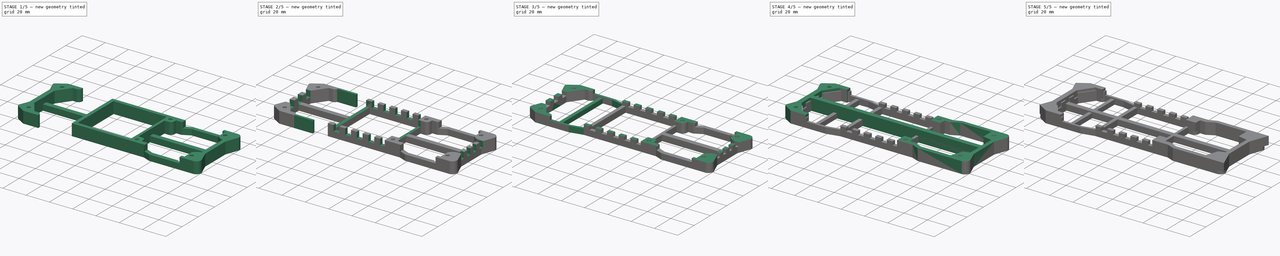
[diagram: build sequence overview — one tinted view per stage of 5, left to right]
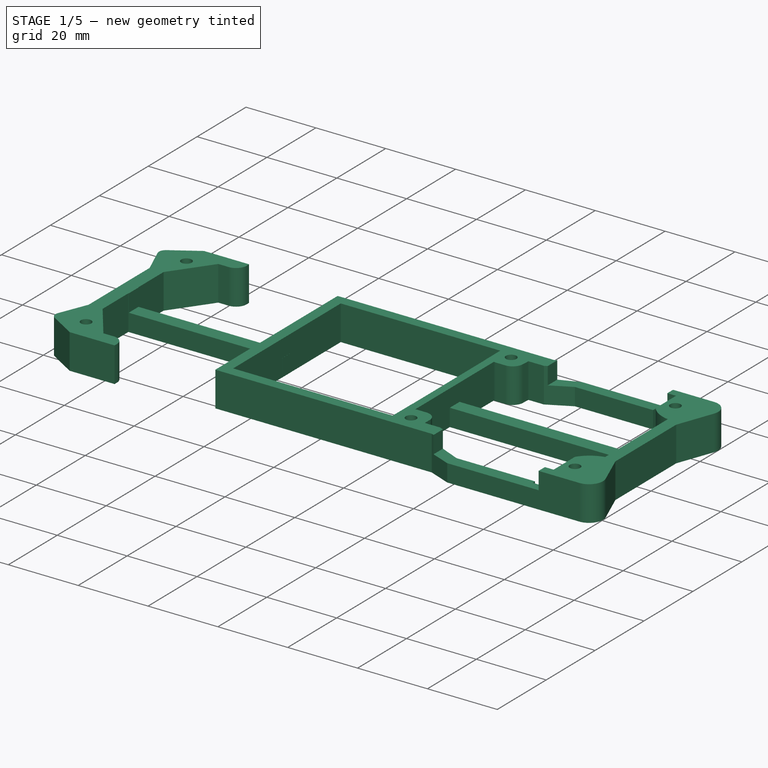
[diagram: stage 1 of 5 — iso view after this stage's code; geometry added in this stage tinted green]
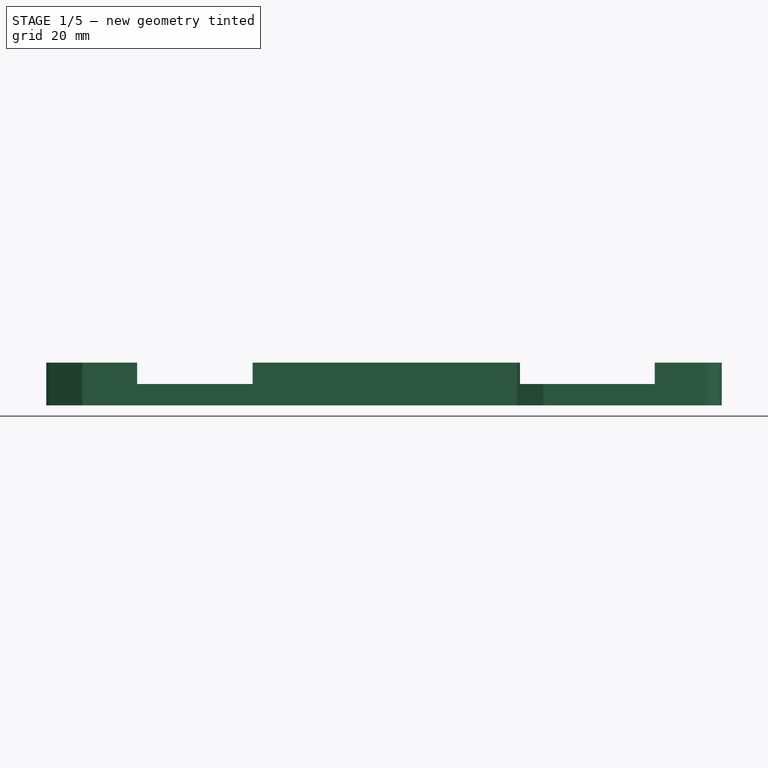
[diagram: stage 1 of 5 — front view after this stage's code; geometry added in this stage tinted green]
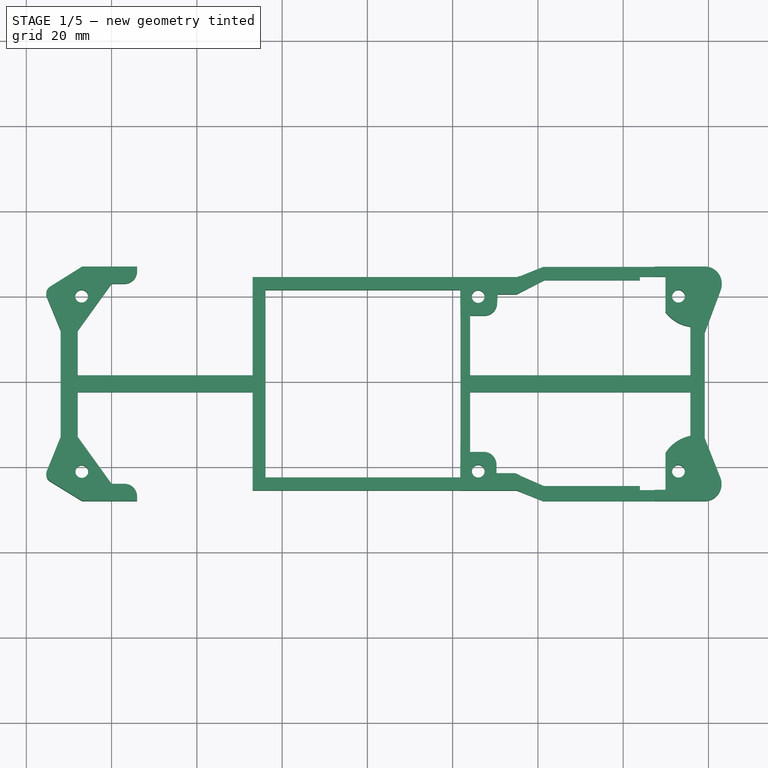
[diagram: stage 1 of 5 — top view after this stage's code; geometry added in this stage tinted green]
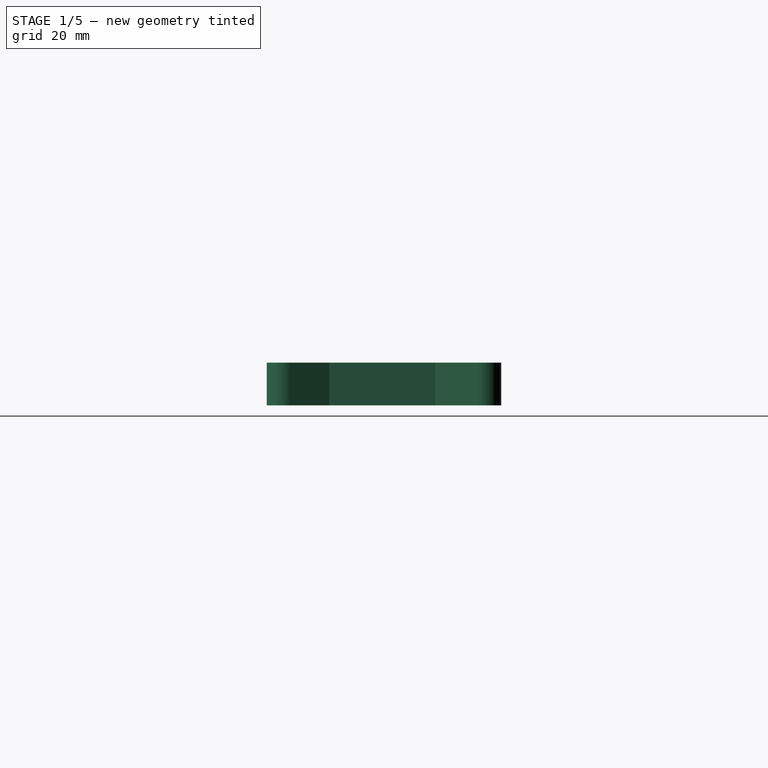
[diagram: stage 1 of 5 — right view after this stage's code; geometry added in this stage tinted green]
FCSTD DOCUMENT  (FreeCAD 0.16R6703 (Git))
Label: Spacer Botton v2
License: FreeArt
LicenseURL: http://artlibre.org/licence/lal
objects: Sketcher::SketchObject×20, PartDesign::Pocket×14, PartDesign::Pad×6, Part::Feature×5, PartDesign::Fillet×4, Part::Fuse×1
note: 70 computed .brp shape members not serialized (recipe doc carries the construction recipe); baked Part::Feature solids carry a one-line shape summary decoded from their .brp

FEATURE [Sketcher::SketchObject] Sketch006
  Placement = pos=(0,0,-10) rot=(1,0,0;3.14159rad)
  Support = -> Fillet003001001 [Face1]
  sketch-geometry (4):
    g0: LineSegment StartX=-80.4988 StartY=32.0496 StartZ=0 EndX=0 EndY=32.0496 EndZ=0
    g1: LineSegment StartX=0 StartY=32.0496 StartZ=0 EndX=0 EndY=-39.7529 EndZ=0
    g2: LineSegment StartX=0 StartY=-39.7529 StartZ=0 EndX=-80.4988 EndY=-39.7529 EndZ=0
    g3: LineSegment StartX=-80.4988 StartY=-39.7529 StartZ=0 EndX=-80.4988 EndY=32.0496 EndZ=0
  constraints (9):
    c: Coincident(g0,g1)
    c: Coincident(g1,g2)
    c: Coincident(g2,g3)
    c: Coincident(g3,g0)
    c: Horizontal(g0)
    c: Horizontal(g2)
    c: Vertical(g1)
    c: Vertical(g3)
    c: PointOnObject(g1,g-2)
FEATURE [PartDesign::Pocket] Pocket004
  Length = 5
  Placement = pos=(0,0,0) rot=(1,0,0;3.14159rad)
  Sketch = -> Sketch006
  Type = 0
FEATURE [Part::Feature] Pocket004001  label="Pocket005"
  Placement = pos=(0,0,0) rot=(1,0,0;3.14159rad)
  shape: bbox 83.13 x 54.98 x 10 mm, 54 faces (baked)
FEATURE [Part::Feature] Pocket003001  label="Pocket006"
  Placement = pos=(1,0,0) rot=(1,0,0;3.14159rad)
  shape: bbox 76.33 x 54.98 x 10 mm, 28 faces (baked)
FEATURE [Sketcher::SketchObject] Sketch007
  Placement = pos=(0,0,-10) rot=(1,0,0;3.14159rad)
  Support = -> Pocket004 [Face1]
  sketch-geometry (9):
    g0: LineSegment StartX=63.9125 StartY=25.4177 StartZ=0 EndX=69.9125 EndY=25.4177 EndZ=0
    g1: LineSegment StartX=69.9125 StartY=25.4177 StartZ=0 EndX=69.9125 EndY=16.6112 EndZ=0
    g2: LineSegment StartX=69.9125 StartY=16.6112 StartZ=0 EndX=63.9125 EndY=16.6112 EndZ=0
    g3: LineSegment StartX=63.9125 StartY=16.6112 StartZ=0 EndX=63.9125 EndY=25.4177 EndZ=0
    g4: LineSegment [constr] StartX=69.9125 StartY=34.0784 StartZ=0 EndX=69.9125 EndY=-31.1454 EndZ=0
    g5: LineSegment StartX=69.9125 StartY=-24.6367 StartZ=0 EndX=63.9125 EndY=-24.6367 EndZ=0
    g6: LineSegment StartX=63.9125 StartY=-24.6367 StartZ=0 EndX=63.9125 EndY=-13.9305 EndZ=0
    g7: LineSegment StartX=63.9125 StartY=-13.9305 StartZ=0 EndX=69.9125 EndY=-13.9305 EndZ=0
    g8: LineSegment StartX=69.9125 StartY=-13.9305 StartZ=0 EndX=69.9125 EndY=-24.6367 EndZ=0
  constraints (22):
    c: Coincident(g0,g1)
    c: Coincident(g1,g2)
    c: Coincident(g2,g3)
    c: Coincident(g3,g0)
    c: Horizontal(g0)
    c: Horizontal(g2)
    c: Vertical(g1)
    c: Vertical(g3)
    c: Equal(g1,g3)
    c: Vertical(g4)
    c: PointOnObject(g1,g4)
    c: Coincident(g5,g6)
    c: Coincident(g6,g7)
    c: Coincident(g7,g8)
    c: Coincident(g8,g5)
    c: Horizontal(g5)
    c: Horizontal(g7)
    c: Vertical(g6)
    c: Vertical(g8)
    c: PointOnObject(g5,g4)
    c: DistanceX(g7,g7) = 6
    c: DistanceX(g2,g2) = 6
FEATURE [PartDesign::Pocket] Pocket004002
  Length = 5
  Placement = pos=(0,0,0) rot=(1,0,0;3.14159rad)
  Sketch = -> Sketch007
  Type = 1
FEATURE [Part::Fuse] Fusion
  Base = -> Pocket003001
  Tool = -> Pocket004002
FEATURE [Sketcher::SketchObject] Sketch008
  Placement = pos=(0,0,-10) rot=(1,0,0;3.14159rad)
  Support = -> Fusion [Face24]
  sketch-geometry (12):
    g0: LineSegment [constr] StartX=21.9692 StartY=25.4523 StartZ=0 EndX=29.5286 EndY=25.4523 EndZ=0
    g1: LineSegment [constr] StartX=22.5282 StartY=-24.4657 StartZ=0 EndX=29.5286 EndY=-24.4657 EndZ=0
    g2: LineSegment [constr] StartX=-52.8049 StartY=0.4933 StartZ=0 EndX=47.8986 EndY=0.4933 EndZ=0
    g3: LineSegment [constr] StartX=-67.932 StartY=-1.98221 StartZ=0 EndX=-67.932 EndY=-11.8836 EndZ=0
    g4: LineSegment StartX=-26.9019 StartY=25.4933 StartZ=0 EndX=24.0981 EndY=25.4933 EndZ=0
    g5: LineSegment StartX=24.0981 StartY=25.4933 StartZ=0 EndX=24.0981 EndY=-24.5067 EndZ=0
    g6: LineSegment StartX=24.0981 StartY=-24.5067 StartZ=0 EndX=-26.9019 EndY=-24.5067 EndZ=0
    g7: LineSegment StartX=-26.9019 StartY=-24.5067 StartZ=0 EndX=-26.9019 EndY=25.4933 EndZ=0
    g8: LineSegment StartX=-23.9019 StartY=22.4933 StartZ=0 EndX=21.7981 EndY=22.4933 EndZ=0
    g9: LineSegment StartX=21.7981 StartY=22.4933 StartZ=0 EndX=21.7981 EndY=-21.5067 EndZ=0
    g10: LineSegment StartX=21.7981 StartY=-21.5067 StartZ=0 EndX=-23.9019 EndY=-21.5067 EndZ=0
    g11: LineSegment StartX=-23.9019 StartY=-21.5067 StartZ=0 EndX=-23.9019 EndY=22.4933 EndZ=0
  constraints (35):
    c: Horizontal(g0)
    c: Horizontal(g1)
    c: DistanceY(g-1,g0) = 25.4523
    c: DistanceY(g-1,g1) = -24.4657
    c: Symmetric(g1,g0,g2)
    c: Vertical(g3)
    c: DistanceX(g-2,g3) = -67.932
    c: DistanceX(g0,g0) = 7.55942
    c: DistanceX(g-2,g0) = 21.9692
    c: Coincident(g4,g5)
    c: Coincident(g5,g6)
    c: Coincident(g6,g7)
    c: Coincident(g7,g4)
    c: Horizontal(g4)
    c: Horizontal(g6)
    c: Vertical(g7)
    c: DistanceX(g-2,g1) = 22.5282
    c: Equal(g5,g7)
    c: DistanceY(g5,g5) = 50
    c: Symmetric(g4,g5,g2)
    c: Equal(g6,g4)
    c: DistanceX(g4,g4) = 51
    c: DistanceX(g-2,g5) = 24.0981
    c: Coincident(g8,g9)
    c: Coincident(g9,g10)
    c: Coincident(g10,g11)
    c: Coincident(g11,g8)
    c: Horizontal(g8)
    c: Horizontal(g10)
    c: Vertical(g9)
    c: Vertical(g11)
    c: Symmetric(g10,g8,g2)
    c: Distance(g10,g7) = 3
    c: Distance(g10,g6) = 3
    c: Distance(g9,g5) = 2.3
FEATURE [PartDesign::Pad] Pad003
  Length = 10
  Length2 = 100
  Reversed = true
  Sketch = -> Sketch008
  Type = 0
FEATURE [Sketcher::SketchObject] Sketch009
  Support = -> Pad003 [Face97]
  sketch-geometry (4):
    g0: LineSegment StartX=21.8458 StartY=15.3458 StartZ=0 EndX=-23.8879 EndY=15.3458 EndZ=0
    g1: LineSegment StartX=-23.8879 StartY=15.3458 StartZ=0 EndX=-23.8879 EndY=-14.4613 EndZ=0
    g2: LineSegment StartX=-23.8879 StartY=-14.4613 StartZ=0 EndX=21.8458 EndY=-14.4613 EndZ=0
    g3: LineSegment StartX=21.8458 StartY=-14.4613 StartZ=0 EndX=21.8458 EndY=15.3458 EndZ=0
  constraints (8):
    c: Coincident(g0,g1)
    c: Coincident(g1,g2)
    c: Coincident(g2,g3)
    c: Coincident(g3,g0)
    c: Horizontal(g0)
    c: Horizontal(g2)
    c: Vertical(g1)
    c: Vertical(g3)
FEATURE [PartDesign::Pocket] Pocket004003
  Length = 5
  Sketch = -> Sketch009
  Type = 1
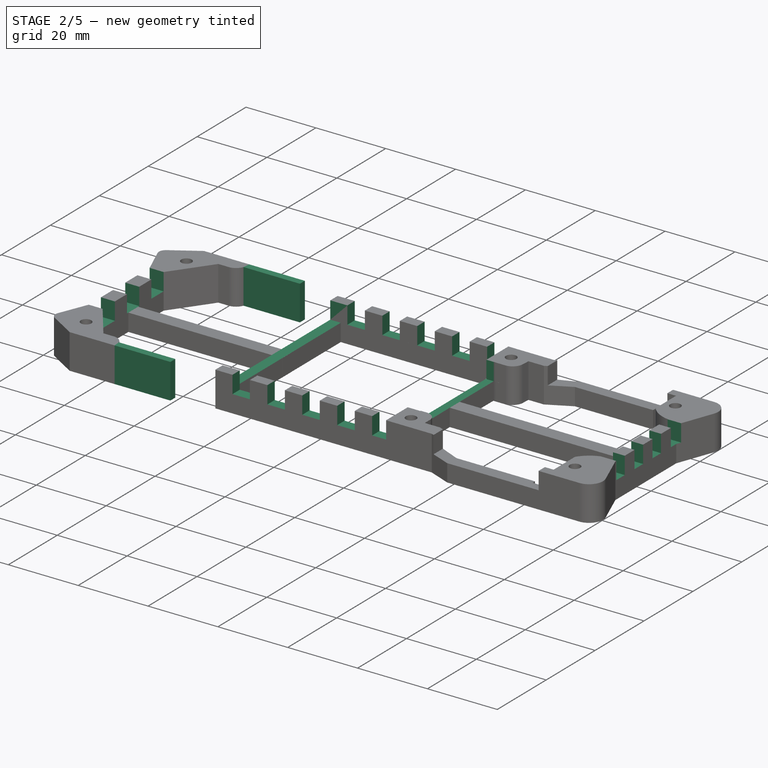
[diagram: stage 2 of 5 — iso view after this stage's code; geometry added in this stage tinted green]
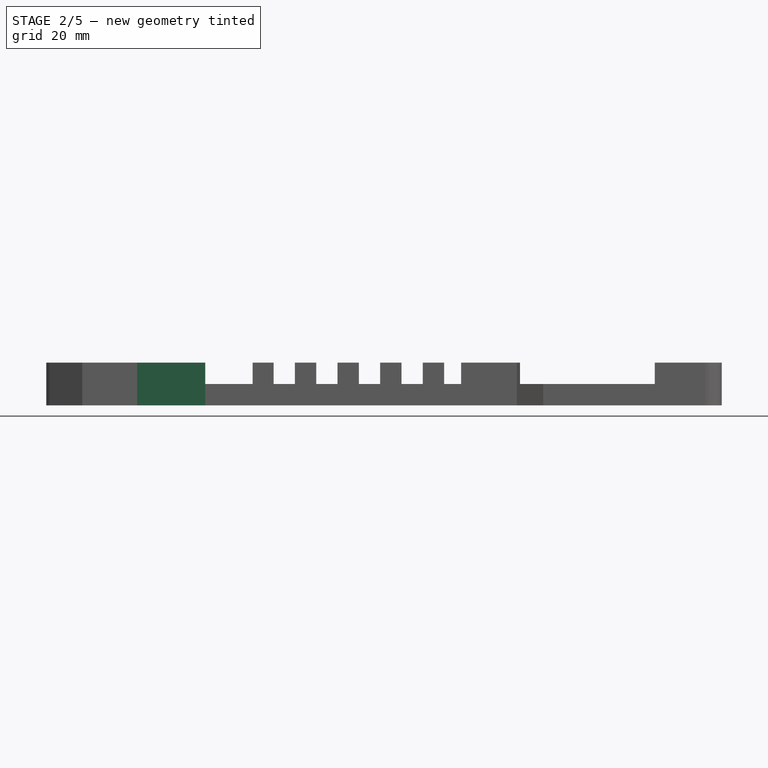
[diagram: stage 2 of 5 — front view after this stage's code; geometry added in this stage tinted green]
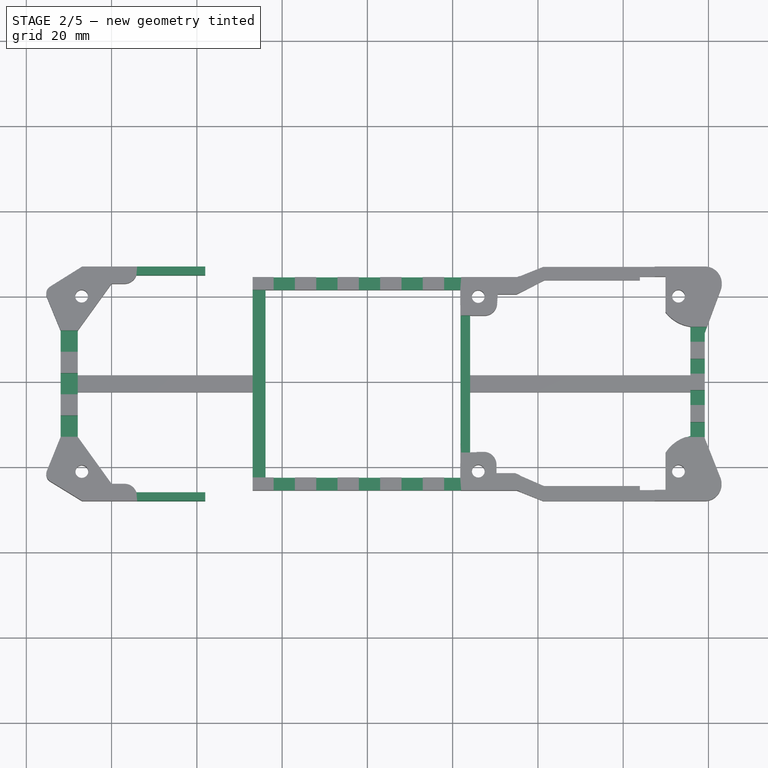
[diagram: stage 2 of 5 — top view after this stage's code; geometry added in this stage tinted green]
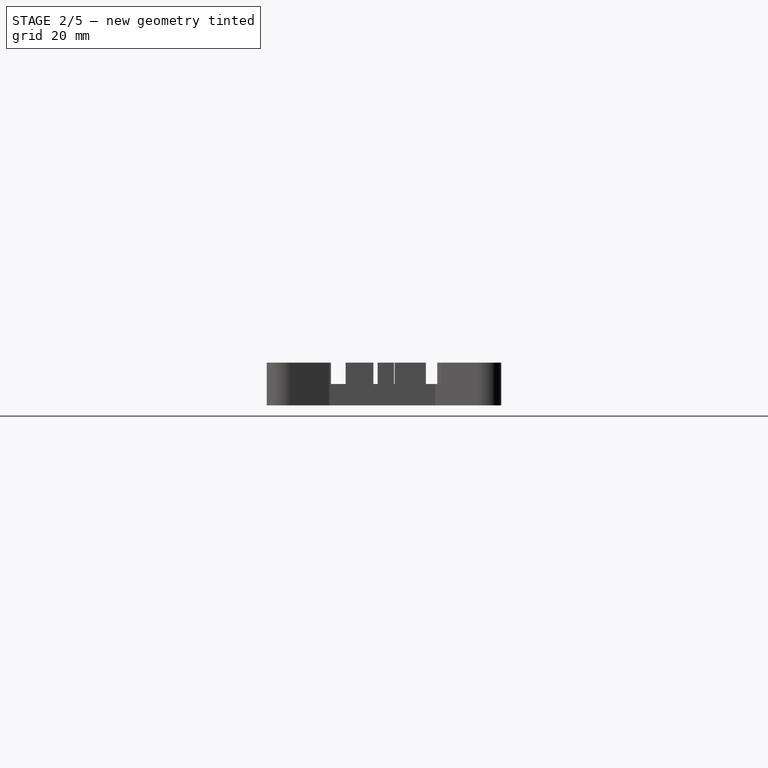
[diagram: stage 2 of 5 — right view after this stage's code; geometry added in this stage tinted green]
FEATURE [Sketcher::SketchObject] Sketch010
  Support = -> Pocket004003 [Face10]
  sketch-geometry (8):
    g0: LineSegment StartX=-33.8543 StartY=21.508 StartZ=0 EndX=18.9825 EndY=21.508 EndZ=0
    g1: LineSegment StartX=18.9825 StartY=21.508 StartZ=0 EndX=18.9825 EndY=15.5043 EndZ=0
    g2: LineSegment StartX=18.9825 StartY=15.5043 StartZ=0 EndX=25.6196 EndY=15.5043 EndZ=0
    g3: LineSegment StartX=25.6196 StartY=15.5043 StartZ=0 EndX=25.6196 EndY=-16.6754 EndZ=0
    g4: LineSegment StartX=25.6196 StartY=-16.6754 StartZ=0 EndX=19.7282 EndY=-16.6754 EndZ=0
    g5: LineSegment StartX=19.7282 StartY=-16.6754 StartZ=0 EndX=19.7282 EndY=-22.4922 EndZ=0
    g6: LineSegment StartX=19.7282 StartY=-22.4922 StartZ=0 EndX=-33.8543 EndY=-22.4922 EndZ=0
    g7: LineSegment StartX=-33.8543 StartY=-22.4922 StartZ=0 EndX=-33.8543 EndY=21.508 EndZ=0
  constraints (16):
    c: Horizontal(g0)
    c: Coincident(g0,g1)
    c: Vertical(g1)
    c: Coincident(g1,g2)
    c: Horizontal(g2)
    c: Coincident(g2,g3)
    c: Vertical(g3)
    c: Coincident(g3,g4)
    c: Coincident(g4,g5)
    c: Vertical(g5)
    c: Coincident(g5,g6)
    c: Horizontal(g6)
    c: Coincident(g6,g7)
    c: Coincident(g7,g0)
    c: Vertical(g7)
    c: Horizontal(g4)
FEATURE [PartDesign::Pocket] Pocket004004
  Length = 5
  Sketch = -> Sketch010
  Type = 0
FEATURE [Sketcher::SketchObject] Sketch011
  Placement = pos=(0,0,-10) rot=(1,0,0;3.14159rad)
  Support = -> Pocket004004 [Face3]
  sketch-geometry (9):
    g0: LineSegment [constr] StartX=-54.0159 StartY=38.359 StartZ=0 EndX=-54.0159 EndY=-33.5097 EndZ=0
    g1: LineSegment StartX=-56.5677 StartY=27.9998 StartZ=0 EndX=-38.0159 EndY=27.9998 EndZ=0
    g2: LineSegment StartX=-38.0159 StartY=27.9998 StartZ=0 EndX=-38.0159 EndY=25.9998 EndZ=0
    g3: LineSegment StartX=-38.0159 StartY=25.9998 StartZ=0 EndX=-56.5677 EndY=25.9998 EndZ=0
    g4: LineSegment StartX=-56.5677 StartY=25.9998 StartZ=0 EndX=-56.5677 EndY=27.9998 EndZ=0
    g5: LineSegment StartX=-58.4628 StartY=-26.9701 StartZ=0 EndX=-38.0159 EndY=-26.9701 EndZ=0
    g6: LineSegment StartX=-38.0159 StartY=-24.9701 StartZ=0 EndX=-58.4628 EndY=-24.9701 EndZ=0
    g7: LineSegment StartX=-58.4628 StartY=-24.9701 StartZ=0 EndX=-58.4628 EndY=-26.9701 EndZ=0
    g8: LineSegment StartX=-38.0159 StartY=-26.9701 StartZ=0 EndX=-38.0159 EndY=-24.9701 EndZ=0
  constraints (20):
    c: Vertical(g0)
    c: DistanceX(g-2,g0) = -54.0159
    c: Coincident(g1,g2)
    c: Coincident(g2,g3)
    c: Coincident(g3,g4)
    c: Coincident(g4,g1)
    c: Horizontal(g1)
    c: Horizontal(g3)
    c: Vertical(g2)
    c: Vertical(g4)
    c: Equal(g4,g2)
    c: DistanceY(g4,g4) = 2
    c: Distance(g1,g0) = 16
    c: Coincident(g6,g7)
    c: Coincident(g7,g5)
    c: Horizontal(g5)
    c: Horizontal(g6)
    c: Vertical(g7)
    c: DistanceY(g7,g7) = 2
    c: Distance(g5,g0) = 16
FEATURE [PartDesign::Pad] Pad004
  Length = 10
  Length2 = 100
  Reversed = true
  Sketch = -> Sketch011
  Type = 0
FEATURE [Sketcher::SketchObject] Sketch012
  Support = -> Pad004 [Face120]
  sketch-geometry (12):
    g0: LineSegment StartX=-76.8566 StartY=11.9695 StartZ=0 EndX=-62.2825 EndY=11.9695 EndZ=0
    g1: LineSegment StartX=-62.2825 StartY=11.9695 StartZ=0 EndX=-62.2825 EndY=6.96953 EndZ=0
    g2: LineSegment StartX=-62.2825 StartY=6.96953 StartZ=0 EndX=-76.8566 EndY=6.96953 EndZ=0
    g3: LineSegment StartX=-76.8566 StartY=6.96953 StartZ=0 EndX=-76.8566 EndY=11.9695 EndZ=0
    g4: LineSegment StartX=-76.8932 StartY=1.98806 StartZ=0 EndX=-62.3192 EndY=1.98806 EndZ=0
    g5: LineSegment StartX=-62.3192 StartY=1.98806 StartZ=0 EndX=-62.3192 EndY=-3.01194 EndZ=0
    g6: LineSegment StartX=-62.3192 StartY=-3.01194 StartZ=0 EndX=-76.8932 EndY=-3.01194 EndZ=0
    g7: LineSegment StartX=-76.8932 StartY=-3.01194 StartZ=0 EndX=-76.8932 EndY=1.98806 EndZ=0
    g8: LineSegment StartX=-76.9141 StartY=-7.96626 StartZ=0 EndX=-62.34 EndY=-7.96626 EndZ=0
    g9: LineSegment StartX=-62.34 StartY=-7.96626 StartZ=0 EndX=-62.34 EndY=-12.9663 EndZ=0
    g10: LineSegment StartX=-62.34 StartY=-12.9663 StartZ=0 EndX=-76.9141 EndY=-12.9663 EndZ=0
    g11: LineSegment StartX=-76.9141 StartY=-12.9663 StartZ=0 EndX=-76.9141 EndY=-7.96626 EndZ=0
  constraints (29):
    c: Coincident(g0,g1)
    c: Coincident(g1,g2)
    c: Coincident(g2,g3)
    c: Coincident(g3,g0)
    c: Horizontal(g0)
    c: Horizontal(g2)
    c: Vertical(g1)
    c: Vertical(g3)
    c: Equal(g3,g1)
    c: DistanceY(g3,g3) = 5
    c: Coincident(g4,g5)
    c: Coincident(g5,g6)
    c: Coincident(g6,g7)
    c: Coincident(g7,g4)
    c: Horizontal(g4)
    c: Horizontal(g6)
    c: Vertical(g5)
    c: Vertical(g7)
    c: Equal(g7,g5)
    c: Equal(g3,g7) = 5
    c: Coincident(g8,g9)
    c: Coincident(g9,g10)
    c: Coincident(g10,g11)
    c: Coincident(g11,g8)
    c: Horizontal(g8)
    c: Horizontal(g10)
    c: Vertical(g9)
    c: Vertical(g11)
    c: Equal(g11,g9)
FEATURE [PartDesign::Pocket] Pocket004005
  Length = 5
  Sketch = -> Sketch012
  Type = 0
FEATURE [Sketcher::SketchObject] Sketch013
  Support = -> Pocket004005 [Face111]
  sketch-geometry (16):
    g0: LineSegment StartX=68.3481 StartY=12.8243 StartZ=0 EndX=88.7073 EndY=12.8243 EndZ=0
    g1: LineSegment StartX=88.7073 StartY=12.8243 StartZ=0 EndX=88.7073 EndY=9.32435 EndZ=0
    g2: LineSegment StartX=88.7073 StartY=9.32435 StartZ=0 EndX=68.3481 EndY=9.32435 EndZ=0
    g3: LineSegment StartX=68.3481 StartY=9.32435 StartZ=0 EndX=68.3481 EndY=12.8243 EndZ=0
    g4: LineSegment StartX=68.3964 StartY=5.32435 StartZ=0 EndX=88.7556 EndY=5.32435 EndZ=0
    g5: LineSegment StartX=88.7556 StartY=5.32435 StartZ=0 EndX=88.7556 EndY=1.82435 EndZ=0
    g6: LineSegment StartX=88.7556 StartY=1.82435 StartZ=0 EndX=68.3964 EndY=1.82435 EndZ=0
    g7: LineSegment StartX=68.3964 StartY=1.82435 StartZ=0 EndX=68.3964 EndY=5.32435 EndZ=0
    g8: LineSegment StartX=68.3266 StartY=-2.0166 StartZ=0 EndX=88.6857 EndY=-2.0166 EndZ=0
    g9: LineSegment StartX=88.6857 StartY=-2.0166 StartZ=0 EndX=88.6857 EndY=-5.5166 EndZ=0
    g10: LineSegment StartX=88.6857 StartY=-5.5166 StartZ=0 EndX=68.3266 EndY=-5.5166 EndZ=0
    g11: LineSegment StartX=68.3266 StartY=-5.5166 StartZ=0 EndX=68.3266 EndY=-2.0166 EndZ=0
    g12: LineSegment StartX=68.2528 StartY=-9.5166 StartZ=0 EndX=88.6119 EndY=-9.5166 EndZ=0
    g13: LineSegment StartX=88.6119 StartY=-9.5166 StartZ=0 EndX=88.6119 EndY=-13.0166 EndZ=0
    g14: LineSegment StartX=88.6119 StartY=-13.0166 StartZ=0 EndX=68.2528 EndY=-13.0166 EndZ=0
    g15: LineSegment StartX=68.2528 StartY=-13.0166 StartZ=0 EndX=68.2528 EndY=-9.5166 EndZ=0
  constraints (42):
    c: Coincident(g0,g1)
    c: Coincident(g1,g2)
    c: Coincident(g2,g3)
    c: Coincident(g3,g0)
    c: Horizontal(g0)
    c: Horizontal(g2)
    c: Vertical(g1)
    c: Vertical(g3)
    c: Equal(g1,g3)
    c: DistanceY(g3,g3) = 3.5
    c: Coincident(g4,g5)
    c: Coincident(g5,g6)
    c: Coincident(g6,g7)
    c: Coincident(g7,g4)
    c: Horizontal(g4)
    c: Horizontal(g6)
    c: Vertical(g5)
    c: Vertical(g7)
    c: Equal(g5,g7)
    c: Equal(g3,g7) = 3.5
    c: Coincident(g8,g9)
    c: Coincident(g9,g10)
    c: Coincident(g10,g11)
    c: Coincident(g11,g8)
    c: Horizontal(g8)
    c: Horizontal(g10)
    c: Vertical(g9)
    c: Vertical(g11)
    c: Equal(g9,g11)
    c: Equal(g3,g11) = 3.5
    c: Coincident(g12,g13)
    c: Coincident(g13,g14)
    c: Coincident(g14,g15)
    c: Coincident(g15,g12)
    c: Horizontal(g12)
    c: Horizontal(g14)
    c: Vertical(g13)
    c: Vertical(g15)
    c: Equal(g13,g15)
    c: Equal(g11,g15) = 3.5
    c: Distance(g4,g2) = 4
    c: Distance(g12,g10) = 4
FEATURE [PartDesign::Pocket] Pocket004006
  Length = 5
  Sketch = -> Sketch013
  Type = 0
FEATURE [Sketcher::SketchObject] Sketch014
  Support = -> Pocket004006 [Face131]
  sketch-geometry (20):
    g0: LineSegment StartX=-22 StartY=29.4108 StartZ=0 EndX=-17 EndY=29.4108 EndZ=0
    g1: LineSegment StartX=-17 StartY=29.4108 StartZ=0 EndX=-17 EndY=-28.6531 EndZ=0
    g2: LineSegment StartX=-17 StartY=-28.6531 StartZ=0 EndX=-22 EndY=-28.6531 EndZ=0
    g3: LineSegment StartX=-22 StartY=-28.6531 StartZ=0 EndX=-22 EndY=29.4108 EndZ=0
    g4: LineSegment StartX=-12 StartY=29.5441 StartZ=0 EndX=-7 EndY=29.5441 EndZ=0
    g5: LineSegment StartX=-7 StartY=29.5441 StartZ=0 EndX=-7 EndY=-28.3863 EndZ=0
    g6: LineSegment StartX=-7 StartY=-28.3863 StartZ=0 EndX=-12 EndY=-28.3863 EndZ=0
    g7: LineSegment StartX=-12 StartY=-28.3863 StartZ=0 EndX=-12 EndY=29.5441 EndZ=0
    g8: LineSegment StartX=-2 StartY=29.2773 StartZ=0 EndX=3 EndY=29.2773 EndZ=0
    g9: LineSegment StartX=3 StartY=29.2773 StartZ=0 EndX=3 EndY=-28.6531 EndZ=0
    g10: LineSegment StartX=3 StartY=-28.6531 StartZ=0 EndX=-2 EndY=-28.6531 EndZ=0
    g11: LineSegment StartX=-2 StartY=-28.6531 StartZ=0 EndX=-2 EndY=29.2773 EndZ=0
    g12: LineSegment StartX=8 StartY=29.5441 StartZ=0 EndX=13 EndY=29.5441 EndZ=0
    g13: LineSegment StartX=13 StartY=29.5441 StartZ=0 EndX=13 EndY=-28.3863 EndZ=0
    g14: LineSegment StartX=13 StartY=-28.3863 StartZ=0 EndX=8 EndY=-28.3863 EndZ=0
    g15: LineSegment StartX=8 StartY=-28.3863 StartZ=0 EndX=8 EndY=29.5441 EndZ=0
    g16: LineSegment StartX=18 StartY=29.5441 StartZ=0 EndX=22 EndY=29.5441 EndZ=0
    g17: LineSegment StartX=22 StartY=29.5441 StartZ=0 EndX=22 EndY=-28.3863 EndZ=0
    g18: LineSegment StartX=22 StartY=-28.3863 StartZ=0 EndX=18 EndY=-28.3863 EndZ=0
    g19: LineSegment StartX=18 StartY=-28.3863 StartZ=0 EndX=18 EndY=29.5441 EndZ=0
  constraints (55):
    c: Coincident(g0,g1)
    c: Coincident(g1,g2)
    c: Coincident(g2,g3)
    c: Coincident(g3,g0)
    c: Horizontal(g0)
    c: Horizontal(g2)
    c: Vertical(g1)
    c: Vertical(g3)
    c: Equal(g2,g0)
    c: DistanceX(g0,g0) = 5
    c: Coincident(g4,g5)
    c: Coincident(g5,g6)
    c: Coincident(g6,g7)
    c: Coincident(g7,g4)
    c: Horizontal(g4)
    c: Horizontal(g6)
    c: Vertical(g5)
    c: Vertical(g7)
    c: Equal(g6,g4)
    c: Equal(g0,g4) = 5
    c: DistanceX(g-2,g2) = -22
    c: Distance(g4,g1) = 5
    c: Coincident(g8,g9)
    c: Coincident(g9,g10)
    c: Coincident(g10,g11)
    c: Coincident(g11,g8)
    c: Horizontal(g8)
    c: Horizontal(g10)
    c: Vertical(g9)
    c: Vertical(g11)
    c: Equal(g10,g8)
    c: Equal(g0,g8) = 5
    c: Coincident(g12,g13)
    c: Coincident(g13,g14)
    c: Coincident(g14,g15)
    c: Coincident(g15,g12)
    c: Horizontal(g12)
    c: Horizontal(g14)
    c: Vertical(g13)
    c: Vertical(g15)
    c: Equal(g14,g12)
    c: Equal(g8,g12) = 5
    c: Distance(g12,g9) = 5
    c: Distance(g10,g5) = 5
    c: Coincident(g16,g17)
    c: Coincident(g17,g18)
    c: Coincident(g18,g19)
    c: Coincident(g19,g16)
    c: Horizontal(g16)
    c: Horizontal(g18)
    c: Vertical(g17)
    c: Vertical(g19)
    c: Equal(g18,g16)
    c: Distance(g18,g13) = 5
    c: DistanceX(g18,g18) = 4
FEATURE [PartDesign::Pocket] Pocket004007
  Length = 5
  Sketch = -> Sketch014
  Type = 0
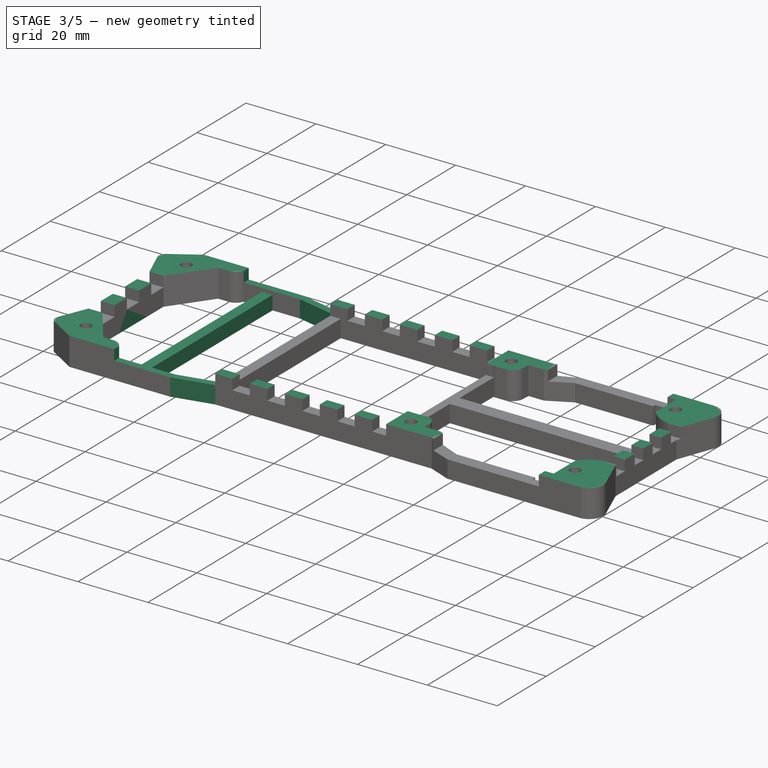
[diagram: stage 3 of 5 — iso view after this stage's code; geometry added in this stage tinted green]
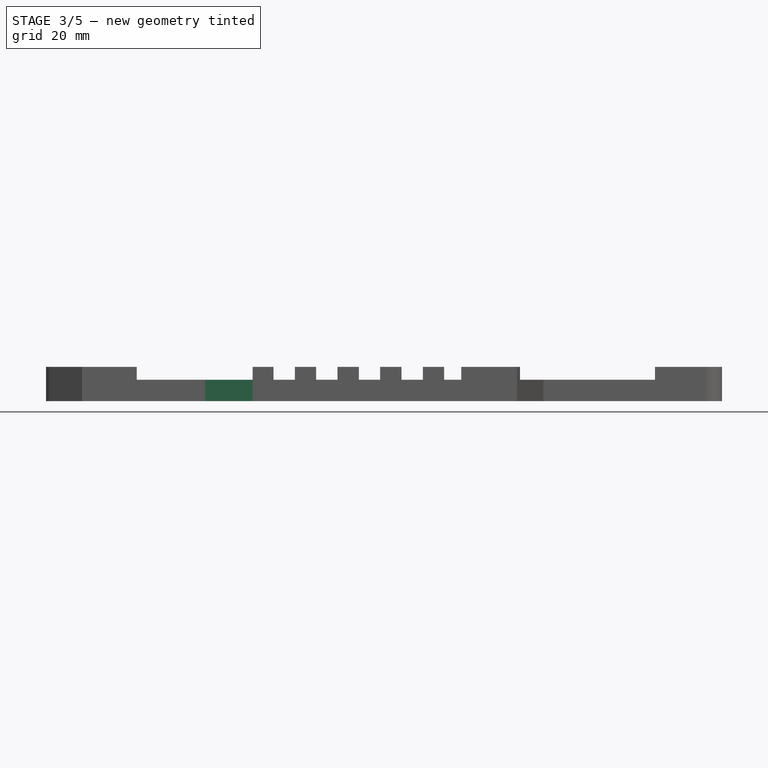
[diagram: stage 3 of 5 — front view after this stage's code; geometry added in this stage tinted green]
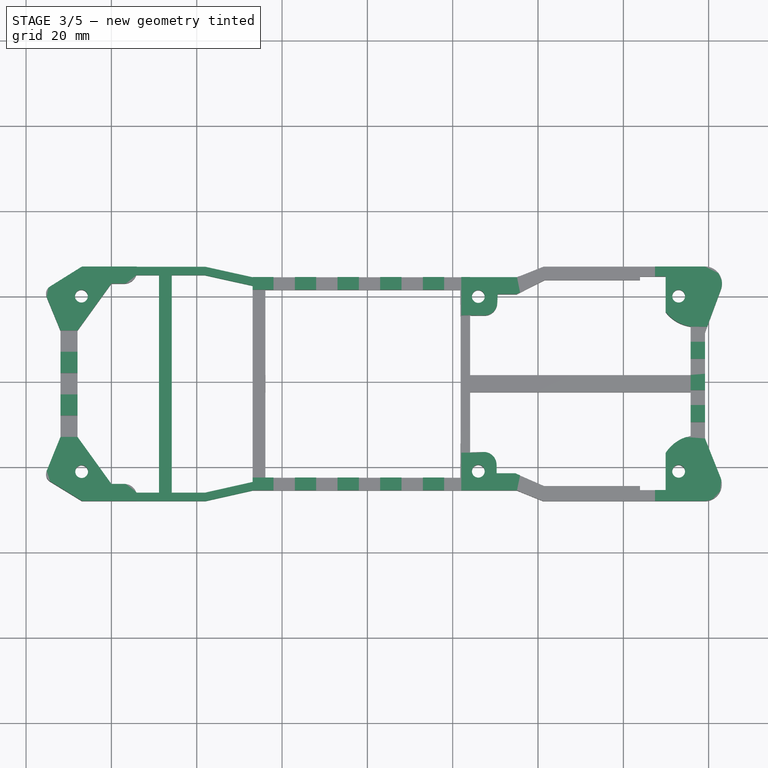
[diagram: stage 3 of 5 — top view after this stage's code; geometry added in this stage tinted green]
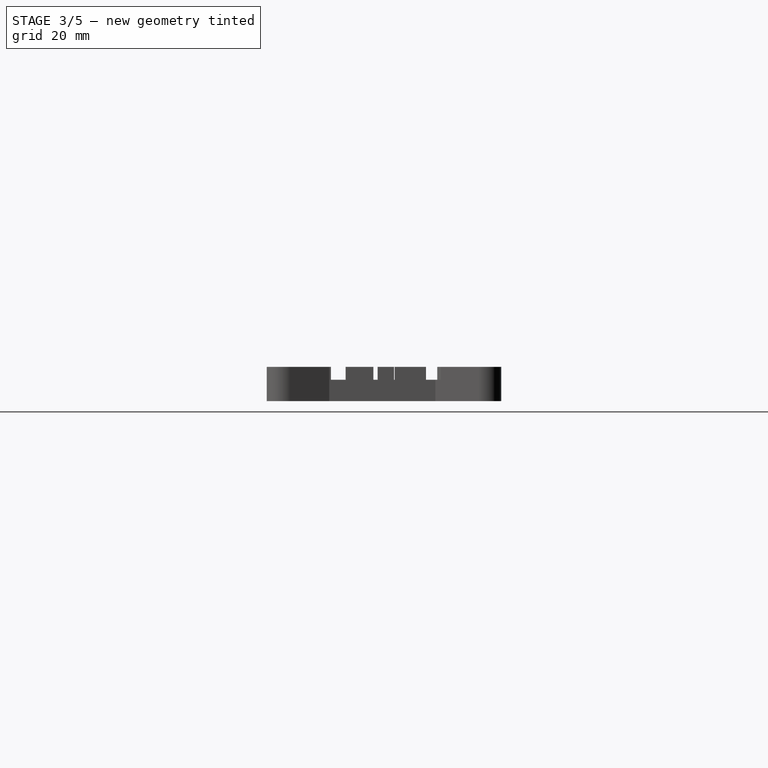
[diagram: stage 3 of 5 — right view after this stage's code; geometry added in this stage tinted green]
FEATURE [Sketcher::SketchObject] Sketch015
  Support = -> Pocket004007 [Face167]
  sketch-geometry (4):
    g0: LineSegment StartX=-54.0649 StartY=28.541 StartZ=0 EndX=-37.9659 EndY=28.541 EndZ=0
    g1: LineSegment StartX=-37.9659 StartY=28.541 StartZ=0 EndX=-37.9659 EndY=-30.0461 EndZ=0
    g2: LineSegment StartX=-37.9659 StartY=-30.0461 StartZ=0 EndX=-54.0649 EndY=-30.0461 EndZ=0
    g3: LineSegment StartX=-54.0649 StartY=-30.0461 StartZ=0 EndX=-54.0649 EndY=28.541 EndZ=0
  constraints (8):
    c: Coincident(g0,g1)
    c: Coincident(g1,g2)
    c: Coincident(g2,g3)
    c: Coincident(g3,g0)
    c: Horizontal(g0)
    c: Horizontal(g2)
    c: Vertical(g1)
    c: Vertical(g3)
FEATURE [PartDesign::Pocket] Pocket004008
  Length = 5
  Sketch = -> Sketch015
  Type = 0
FEATURE [Sketcher::SketchObject] Sketch016
  Support = -> Pocket004008 [Face169]
  sketch-geometry (4):
    g0: LineSegment StartX=-77.9644 StartY=37.1714 StartZ=0 EndX=87.8882 EndY=37.1714 EndZ=0
    g1: LineSegment StartX=87.8882 StartY=37.1714 StartZ=0 EndX=87.8882 EndY=-33.537 EndZ=0
    g2: LineSegment StartX=87.8882 StartY=-33.537 StartZ=0 EndX=-77.9644 EndY=-33.537 EndZ=0
    g3: LineSegment StartX=-77.9644 StartY=-33.537 StartZ=0 EndX=-77.9644 EndY=37.1714 EndZ=0
  constraints (8):
    c: Coincident(g0,g1)
    c: Coincident(g1,g2)
    c: Coincident(g2,g3)
    c: Coincident(g3,g0)
    c: Horizontal(g0)
    c: Horizontal(g2)
    c: Vertical(g1)
    c: Vertical(g3)
FEATURE [PartDesign::Pocket] Pocket004009
  Length = 2
  Sketch = -> Sketch016
  Type = 0
FEATURE [Sketcher::SketchObject] Sketch017
  Placement = pos=(0,0,-10) rot=(1,0,0;3.14159rad)
  Support = -> Pocket004009 [Face4]
  sketch-geometry (8):
    g0: LineSegment StartX=-38.017 StartY=-26.9693 StartZ=0 EndX=-26.8951 EndY=-24.5 EndZ=0
    g1: LineSegment StartX=-26.8951 StartY=-24.5 StartZ=0 EndX=-26.8951 EndY=-22.5 EndZ=0
    g2: LineSegment StartX=-26.8951 StartY=-22.5 StartZ=0 EndX=-38.017 EndY=-24.9693 EndZ=0
    g3: LineSegment StartX=-38.017 StartY=-24.9693 StartZ=0 EndX=-38.017 EndY=-26.9693 EndZ=0
    g4: LineSegment StartX=-38.0185 StartY=27.9898 StartZ=0 EndX=-26.8883 EndY=25.4857 EndZ=0
    g5: LineSegment StartX=-26.8883 StartY=25.4857 StartZ=0 EndX=-26.8883 EndY=23.4857 EndZ=0
    g6: LineSegment StartX=-26.8883 StartY=23.4857 StartZ=0 EndX=-38.0185 EndY=25.9898 EndZ=0
    g7: LineSegment StartX=-38.0185 StartY=25.9898 StartZ=0 EndX=-38.0185 EndY=27.9898 EndZ=0
  constraints (16):
    c: Coincident(g0,g1)
    c: Vertical(g1)
    c: Coincident(g1,g2)
    c: Coincident(g2,g3)
    c: Coincident(g3,g0)
    c: Vertical(g3)
    c: Equal(g1,g3)
    c: DistanceY(g3,g3) = 2
    c: Coincident(g4,g5)
    c: Vertical(g5)
    c: Coincident(g5,g6)
    c: Coincident(g6,g7)
    c: Coincident(g7,g4)
    c: Vertical(g7)
    c: DistanceY(g5,g5) = 2
    c: DistanceY(g7,g7) = 2
FEATURE [PartDesign::Pad] Pad005
  Length = 5
  Length2 = 100
  Reversed = true
  Sketch = -> Sketch017
  Type = 0
FEATURE [Sketcher::SketchObject] Sketch018
  Placement = pos=(0,0,-10) rot=(1,0,0;3.14159rad)
  Support = -> Pad005 [Face191]
  sketch-geometry (4):
    g0: LineSegment StartX=-67.9443 StartY=6.19699 StartZ=0 EndX=-26.8842 EndY=6.19699 EndZ=0
    g1: LineSegment StartX=-26.8842 StartY=6.19699 StartZ=0 EndX=-26.8842 EndY=-5.15508 EndZ=0
    g2: LineSegment StartX=-26.8842 StartY=-5.15508 StartZ=0 EndX=-67.9443 EndY=-5.15508 EndZ=0
    g3: LineSegment StartX=-67.9443 StartY=-5.15508 StartZ=0 EndX=-67.9443 EndY=6.19699 EndZ=0
  constraints (8):
    c: Coincident(g0,g1)
    c: Coincident(g1,g2)
    c: Coincident(g2,g3)
    c: Coincident(g3,g0)
    c: Horizontal(g0)
    c: Horizontal(g2)
    c: Vertical(g1)
    c: Vertical(g3)
FEATURE [PartDesign::Pocket] Pocket004010
  Length = 5
  Sketch = -> Sketch018
  Type = 0
FEATURE [Sketcher::SketchObject] Sketch019
  Placement = pos=(0,0,-10) rot=(1,0,0;3.14159rad)
  Support = -> Pocket004010 [Face2]
  sketch-geometry (7):
    g0: LineSegment StartX=-48.8511 StartY=26.8052 StartZ=0 EndX=-45.8511 EndY=26.8052 EndZ=0
    g1: LineSegment StartX=-45.8511 StartY=26.8052 StartZ=0 EndX=-45.8511 EndY=-26.3736 EndZ=0
    g2: LineSegment StartX=-45.8511 StartY=-26.3736 StartZ=0 EndX=-48.8511 EndY=-26.3736 EndZ=0
    g3: LineSegment StartX=-48.8511 StartY=-26.3736 StartZ=0 EndX=-48.8511 EndY=26.8052 EndZ=0
    g4: LineSegment [constr] StartX=-26.7888 StartY=3.54632 StartZ=0 EndX=-26.7888 EndY=-3.70442 EndZ=0
    g5: LineSegment [constr] StartX=-47.3511 StartY=5.04341 StartZ=0 EndX=-47.3511 EndY=-4.25404 EndZ=0
    g6: LineSegment [constr] StartX=-67.9135 StartY=3.54632 StartZ=0 EndX=-67.9135 EndY=-3.55974 EndZ=0
  constraints (16):
    c: Coincident(g0,g1)
    c: Coincident(g1,g2)
    c: Coincident(g2,g3)
    c: Coincident(g3,g0)
    c: Horizontal(g0)
    c: Horizontal(g2)
    c: Vertical(g1)
    c: Vertical(g3)
    c: DistanceX(g2,g2) = 3
    c: Vertical(g4)
    c: Vertical(g5)
    c: Vertical(g6)
    c: DistanceX(g-2,g4) = -26.7888
    c: DistanceX(g-2,g6) = -67.9135
    c: Symmetric(g4,g6,g5)
    c: Symmetric(g1,g2,g5)
FEATURE [PartDesign::Pad] Pad006
  Length = 4
  Length2 = 100
  Reversed = true
  Sketch = -> Sketch019
  Type = 0
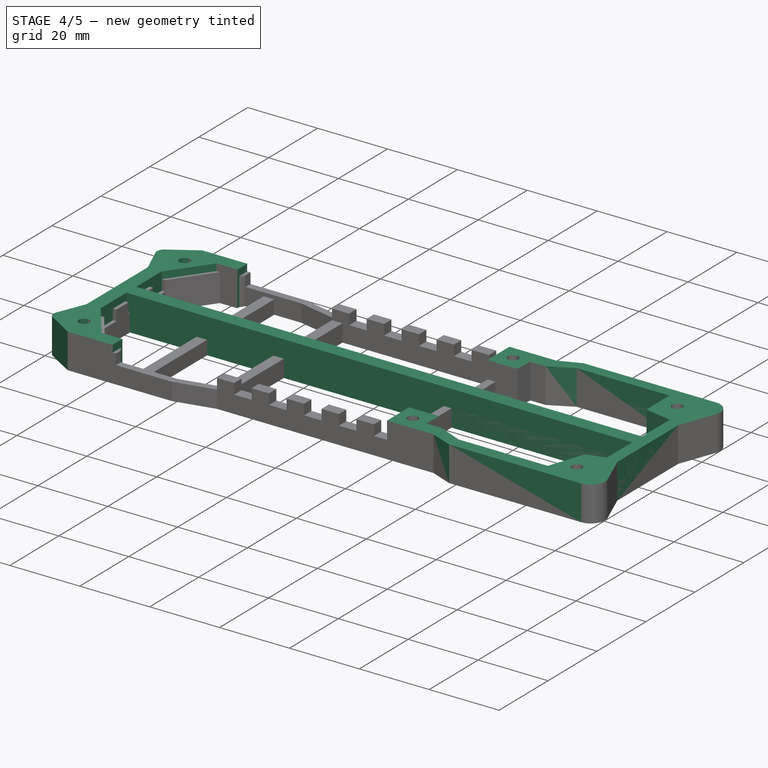
[diagram: stage 4 of 5 — iso view after this stage's code; geometry added in this stage tinted green]
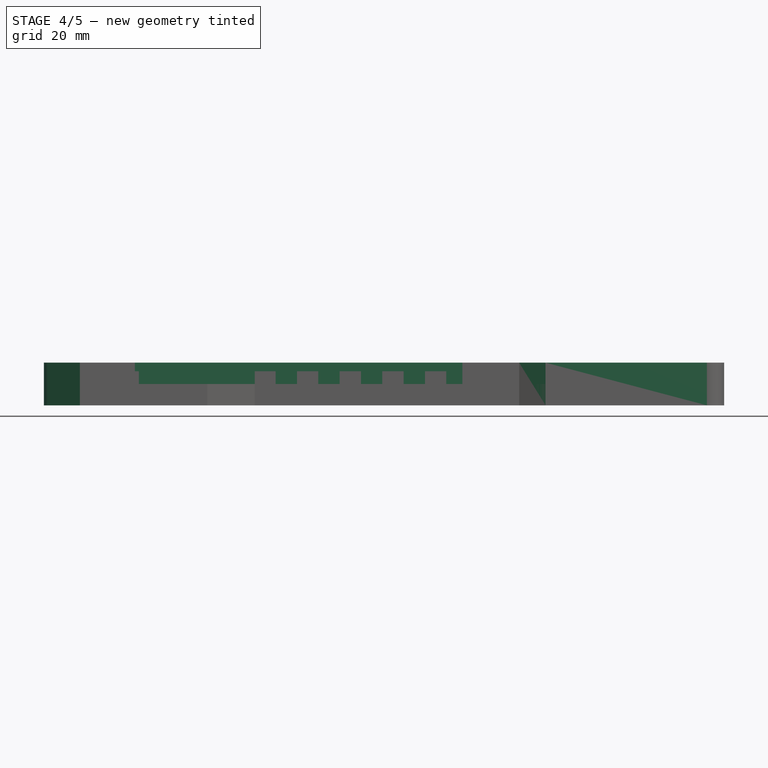
[diagram: stage 4 of 5 — front view after this stage's code; geometry added in this stage tinted green]
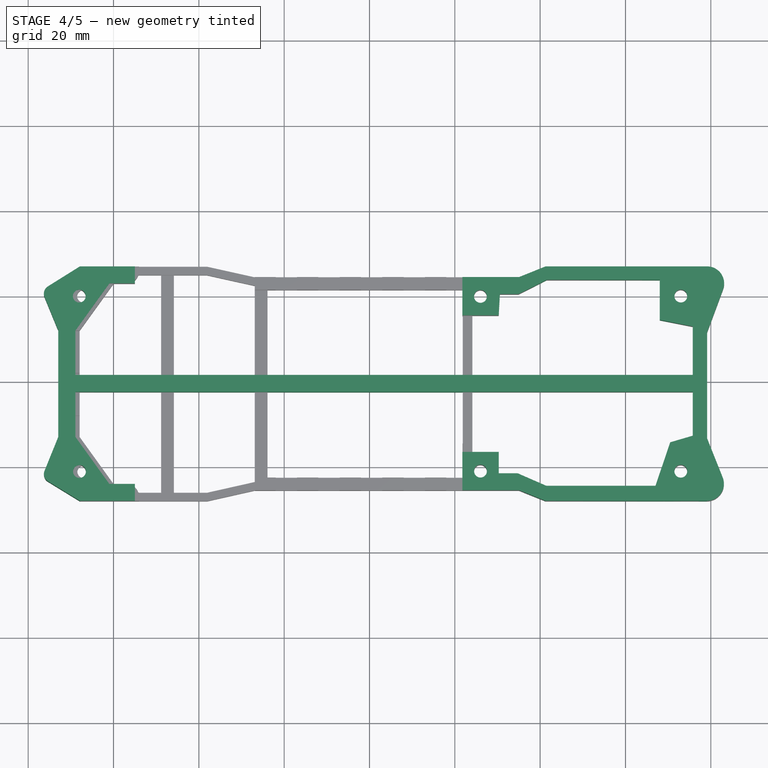
[diagram: stage 4 of 5 — top view after this stage's code; geometry added in this stage tinted green]
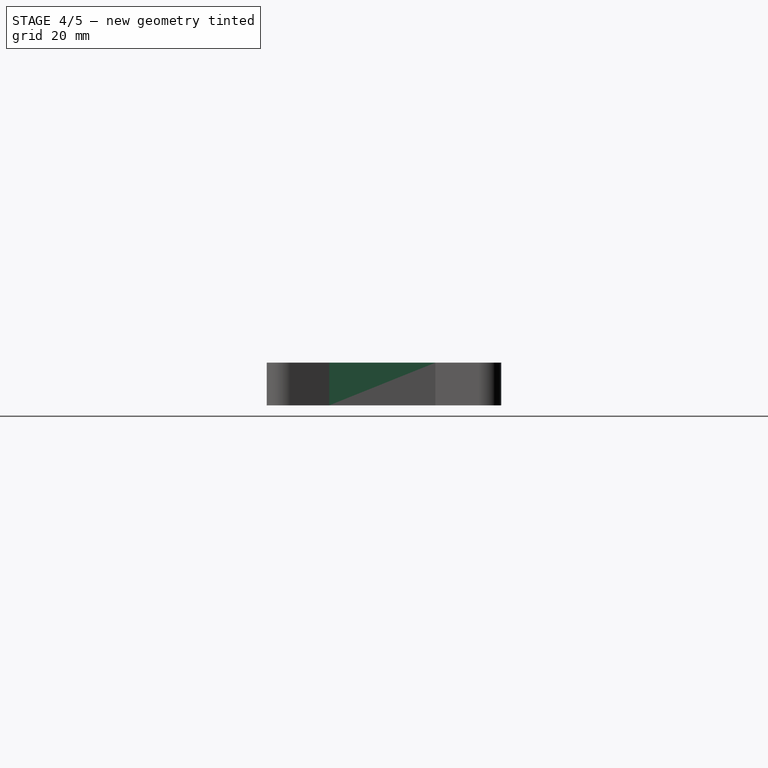
[diagram: stage 4 of 5 — right view after this stage's code; geometry added in this stage tinted green]
FEATURE [Part::Feature] Pad001
  Placement = pos=(0,0,0) rot=(1,0,0;3.14159rad)
  shape: bbox 161.8 x 54.98 x 10 mm, 44 faces, 2 solids (baked)
FEATURE [Sketcher::SketchObject] Sketch001
  Placement = pos=(0,0,-10) rot=(1,0,0;3.14159rad)
  Support = -> Pad001 [Face44]
  sketch-geometry (7):
    g0: LineSegment StartX=-70.3181 StartY=2.454 StartZ=0 EndX=78.1057 EndY=2.454 EndZ=0
    g1: LineSegment StartX=78.1057 StartY=2.454 StartZ=0 EndX=78.1057 EndY=-1.546 EndZ=0
    g2: LineSegment StartX=78.1057 StartY=-1.546 StartZ=0 EndX=-70.3181 EndY=-1.546 EndZ=0
    g3: LineSegment StartX=-70.3181 StartY=-1.546 StartZ=0 EndX=-70.3181 EndY=2.454 EndZ=0
    g4: LineSegment [constr] StartX=22.8225 StartY=25.3612 StartZ=0 EndX=27.8185 EndY=25.3612 EndZ=0
    g5: LineSegment [constr] StartX=22.8225 StartY=-24.4532 StartZ=0 EndX=29.6729 EndY=-24.4532 EndZ=0
    g6: LineSegment [constr] StartX=17.6497 StartY=0.454 StartZ=0 EndX=36.231 EndY=0.454 EndZ=0
  constraints (16):
    c: Coincident(g0,g1)
    c: Coincident(g1,g2)
    c: Coincident(g2,g3)
    c: Coincident(g3,g0)
    c: Horizontal(g0)
    c: Horizontal(g2)
    c: Vertical(g1)
    c: Vertical(g3)
    c: Horizontal(g4)
    c: Horizontal(g5)
    c: DistanceY(g-1,g4) = 25.3612
    c: DistanceY(g-1,g5) = -24.4532
    c: Horizontal(g6)
    c: Symmetric(g5,g4,g6)
    c: Symmetric(g1,g0,g6)
    c: DistanceY(g1,g1) = 4
FEATURE [PartDesign::Pad] Pad002
  Length = 10
  Length2 = 100
  Placement = pos=(0,0,0) rot=(1,0,0;3.14159rad)
  Reversed = true
  Sketch = -> Sketch001
  Type = 0
FEATURE [Sketcher::SketchObject] Sketch002
  Support = -> Pad002 [Face45]
  sketch-geometry (6):
    g0: Circle CenterX=26.003 CenterY=19.9332 CenterZ=0 NormalX=0 NormalY=0 NormalZ=1 Radius=1.5
    g1: Circle CenterX=26.0065 CenterY=-21.0226 CenterZ=0 NormalX=0 NormalY=0 NormalZ=1 Radius=1.5
    g2: Circle CenterX=-68.0255 CenterY=20.0177 CenterZ=0 NormalX=0 NormalY=0 NormalZ=1 Radius=1.5
    g3: Circle CenterX=-67.9755 CenterY=-21.111 CenterZ=0 NormalX=0 NormalY=0 NormalZ=1 Radius=1.5
    g4: Circle CenterX=72.9653 CenterY=20.0177 CenterZ=0 NormalX=0 NormalY=0 NormalZ=1 Radius=1.5
    g5: Circle CenterX=72.962 CenterY=-21.0458 CenterZ=0 NormalX=0 NormalY=0 NormalZ=1 Radius=1.5
  constraints (6):
    c: Radius(g0) = 1.5
    c: Radius(g1) = 1.5
    c: Radius(g2) = 1.5
    c: Radius(g3) = 1.5
    c: Radius(g4) = 1.5
    c: Radius(g5) = 1.5
FEATURE [PartDesign::Pocket] Pocket
  Length = 5
  Placement = pos=(0,0,0) rot=(1,0,0;3.14159rad)
  Sketch = -> Sketch002
  Type = 1
FEATURE [PartDesign::Fillet] Fillet
  Base = -> Pocket [Edge114,Edge120]
  Placement = pos=(0,0,0) rot=(1,0,0;3.14159rad)
  Radius = 4
FEATURE [PartDesign::Fillet] Fillet001
  Base = -> Fillet [Edge138,Edge126]
  Placement = pos=(0,0,0) rot=(1,0,0;3.14159rad)
  Radius = 2
FEATURE [Part::Feature] Fillet003001  label="Fillet004"
  Placement = pos=(0,0,0) rot=(1,0,0;3.14159rad)
  shape: bbox 159.5 x 54.98 x 10 mm, 76 faces (baked)
FEATURE [Part::Feature] Fillet003001001  label="Fillet005"
  Placement = pos=(0,0,0) rot=(1,0,0;3.14159rad)
  shape: bbox 159.5 x 54.98 x 10 mm, 76 faces (baked)
FEATURE [Sketcher::SketchObject] Sketch005
  Placement = pos=(0,0,-10) rot=(1,0,0;3.14159rad)
  Support = -> Fillet003001 [Face1]
  sketch-geometry (4):
    g0: LineSegment StartX=0 StartY=42.201 StartZ=0 EndX=99.0074 EndY=42.201 EndZ=0
    g1: LineSegment StartX=99.0074 StartY=42.201 StartZ=0 EndX=99.0074 EndY=-40.9909 EndZ=0
    g2: LineSegment StartX=99.0074 StartY=-40.9909 StartZ=0 EndX=0 EndY=-40.9909 EndZ=0
    g3: LineSegment StartX=0 StartY=-40.9909 StartZ=0 EndX=0 EndY=42.201 EndZ=0
  constraints (9):
    c: Coincident(g0,g1)
    c: Coincident(g1,g2)
    c: Coincident(g2,g3)
    c: Coincident(g3,g0)
    c: Horizontal(g0)
    c: Horizontal(g2)
    c: Vertical(g1)
    c: Vertical(g3)
    c: PointOnObject(g0,g-2)
FEATURE [PartDesign::Pocket] Pocket003
  Length = 5
  Placement = pos=(0,0,0) rot=(1,0,0;3.14159rad)
  Sketch = -> Sketch005
  Type = 0
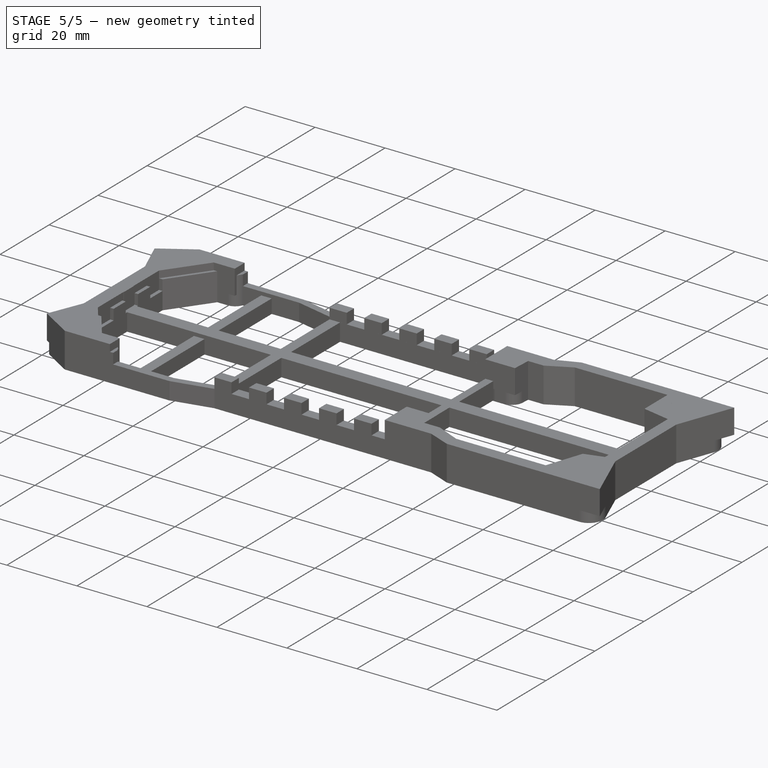
[diagram: stage 5 of 5 — iso view after this stage's code; geometry added in this stage tinted green]
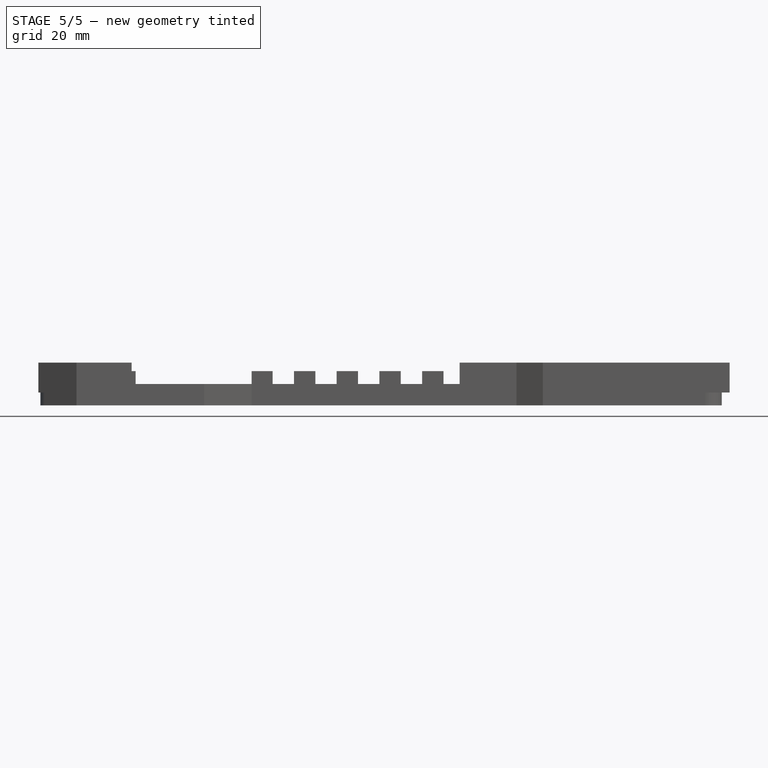
[diagram: stage 5 of 5 — front view after this stage's code; geometry added in this stage tinted green]
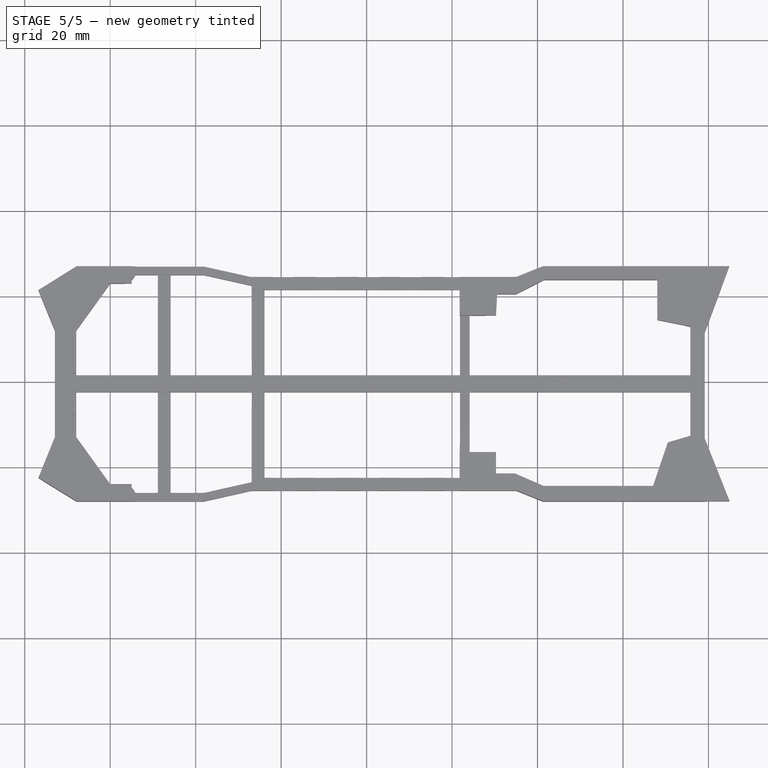
[diagram: stage 5 of 5 — top view after this stage's code; geometry added in this stage tinted green]
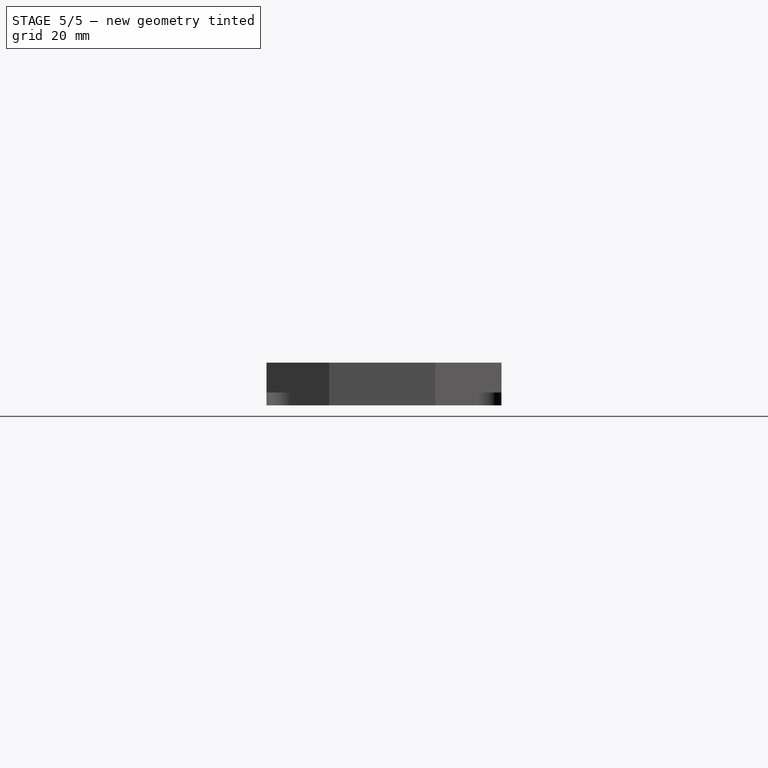
[diagram: stage 5 of 5 — right view after this stage's code; geometry added in this stage tinted green]
FEATURE [Sketcher::SketchObject] Sketch
  Placement = pos=(0,0,0) rot=(1,0,0;3.14159rad)
  sketch-geometry (41):
    g0: LineSegment StartX=-55 StartY=28 StartZ=0 EndX=-67.8803 EndY=28 EndZ=0
    g1: LineSegment StartX=-67.8803 StartY=28 StartZ=0 EndX=-76.8108 EndY=22.5276 EndZ=0
    g2: LineSegment StartX=-76.8108 StartY=22.5276 StartZ=0 EndX=-72.9426 EndY=12.9789 EndZ=0
    g3: LineSegment StartX=-72.9426 StartY=12.9789 StartZ=0 EndX=-72.9426 EndY=-11.957 EndZ=0
    g4: LineSegment StartX=-72.9426 StartY=-11.957 StartZ=0 EndX=-76.8225 EndY=-21.3904 EndZ=0
    g5: LineSegment StartX=-76.8225 StartY=-21.3904 StartZ=0 EndX=-67.8803 EndY=-26.9781 EndZ=0
    g6: LineSegment StartX=-67.8803 StartY=-26.9781 StartZ=0 EndX=-55 EndY=-26.9781 EndZ=0
    g7: LineSegment StartX=-55 StartY=-26.9781 StartZ=0 EndX=-55 EndY=-22.9781 EndZ=0
    g8: LineSegment StartX=-55 StartY=-22.9781 StartZ=0 EndX=-61 EndY=-22.9781 EndZ=0
    g9: LineSegment StartX=-61 StartY=-22.9781 StartZ=0 EndX=-68.9426 EndY=-11.957 EndZ=0
    g10: LineSegment StartX=-68.9426 StartY=-11.957 StartZ=0 EndX=-68.9426 EndY=12.9789 EndZ=0
    g11: LineSegment StartX=-68.9426 StartY=12.9789 StartZ=0 EndX=-61 EndY=24 EndZ=0
    g12: LineSegment StartX=-61 StartY=24 StartZ=0 EndX=-55 EndY=24 EndZ=0
    g13: LineSegment StartX=-55 StartY=24 StartZ=0 EndX=-55 EndY=28 EndZ=0
    g14: LineSegment [constr] StartX=-102.462 StartY=0.51095 StartZ=0 EndX=101.428 EndY=0.51095 EndZ=0
    g15: LineSegment StartX=21.7776 StartY=25.511 StartZ=0 EndX=35.0776 EndY=25.511 EndZ=0
    g16: LineSegment StartX=35.0776 StartY=25.511 StartZ=0 EndX=41.2645 EndY=28 EndZ=0
    g17: LineSegment StartX=41.2645 StartY=28 StartZ=0 EndX=84.9697 EndY=28 EndZ=0
    g18: LineSegment StartX=84.9697 StartY=28 StartZ=0 EndX=79.1403 EndY=13.3471 EndZ=0
    g19: LineSegment StartX=79.1403 StartY=13.3471 StartZ=0 EndX=79.1403 EndY=-11.519 EndZ=0
    g20: LineSegment StartX=79.1403 StartY=-11.519 StartZ=0 EndX=84.8787 EndY=-26.9781 EndZ=0
    g21: LineSegment StartX=84.8787 StartY=-26.9781 StartZ=0 EndX=41.2645 EndY=-26.9781 EndZ=0
    g22: LineSegment StartX=41.2645 StartY=-26.9781 StartZ=0 EndX=35.0776 EndY=-24.489 EndZ=0
    g23: LineSegment StartX=35.0776 StartY=-24.489 StartZ=0 EndX=21.7776 EndY=-24.489 EndZ=0
    g24: LineSegment StartX=21.7776 StartY=-24.489 StartZ=0 EndX=21.7776 EndY=-15.4891 EndZ=0
    g25: LineSegment StartX=21.7776 StartY=-15.4891 StartZ=0 EndX=30.2836 EndY=-15.4891 EndZ=0
    g26: LineSegment StartX=30.2836 StartY=-15.4891 StartZ=0 EndX=30.5529 EndY=-20.4818 EndZ=0
    g27: LineSegment StartX=30.5529 StartY=-20.4818 StartZ=0 EndX=34.9718 EndY=-20.4818 EndZ=0
    g28: LineSegment StartX=34.9718 StartY=-20.4818 StartZ=0 EndX=41.5256 EndY=-23.8176 EndZ=0
    g29: LineSegment StartX=41.5256 StartY=-23.8176 StartZ=0 EndX=68.028 EndY=-23.8176 EndZ=0
    g30: LineSegment StartX=68.028 StartY=-23.8176 StartZ=0 EndX=68.028 EndY=-14.4337 EndZ=0
    g31: LineSegment StartX=68.028 StartY=-14.4337 StartZ=0 EndX=75.7702 EndY=-12.8853 EndZ=0
    g32: LineSegment StartX=75.7702 StartY=-12.8853 StartZ=0 EndX=75.7702 EndY=12.7095 EndZ=0
    g33: LineSegment StartX=75.7702 StartY=12.7095 StartZ=0 EndX=70.4873 EndY=14.2579 EndZ=0
    g34: LineSegment StartX=70.4873 StartY=14.2579 StartZ=0 EndX=67.0261 EndY=24.4526 EndZ=0
    g35: LineSegment StartX=67.0261 StartY=24.4526 StartZ=0 EndX=41.4425 EndY=24.4526 EndZ=0
    g36: LineSegment StartX=41.4425 StartY=24.4526 StartZ=0 EndX=34.7025 EndY=21.511 EndZ=0
    g37: LineSegment StartX=34.7025 StartY=21.511 StartZ=0 EndX=30.2836 EndY=21.511 EndZ=0
    g38: LineSegment StartX=30.2836 StartY=21.511 StartZ=0 EndX=30.2836 EndY=16.511 EndZ=0
    g39: LineSegment StartX=30.2836 StartY=16.511 StartZ=0 EndX=21.7776 EndY=16.511 EndZ=0
    g40: LineSegment StartX=21.7776 StartY=16.511 StartZ=0 EndX=21.7776 EndY=25.511 EndZ=0
  constraints (99):
    c: Horizontal(g0)
    c: Coincident(g0,g1)
    c: Coincident(g1,g2)
    c: Coincident(g2,g3)
    c: Vertical(g3)
    c: Coincident(g3,g4)
    c: Coincident(g4,g5)
    c: Coincident(g5,g6)
    c: Horizontal(g6)
    c: Coincident(g6,g7)
    c: Coincident(g7,g8)
    c: Coincident(g8,g9)
    c: Coincident(g9,g10)
    c: Vertical(g10)
    c: Coincident(g10,g11)
    c: Coincident(g11,g12)
    c: Horizontal(g12)
    c: Coincident(g12,g13)
    c: Vertical(g7)
    c: Horizontal(g8)
    c: Vertical(g13)
    c: Coincident(g0,g13)
    c: DistanceY(g-1,g0) = 28
    c: DistanceX(g-2,g0) = -55
    c: Equal(g13,g7)
    c: DistanceY(g13,g13) = 4
    c: DistanceY(g-1,g6) = -26.9781
    c: DistanceX(g-2,g6) = -55
    c: DistanceX(g0,g0) = 12.8803
    c: DistanceX(g-2,g1) = -76.8108
    c: DistanceX(g-2,g2) = -72.9426
    c: Equal(g0,g6)
    c: DistanceX(g-2,g4) = -76.8225
    c: Equal(g8,g12)
    c: Equal(g3,g10)
    c: Symmetric(g0,g5,g14)
    c: Symmetric(g10,g9,g14)
    c: Symmetric(g3,g2,g14)
    c: Distance(g2,g10) = 4
    c: DistanceX(g12,g12) = 6
    c: Horizontal(g15)
    c: Coincident(g15,g16)
    c: Coincident(g16,g17)
    c: Horizontal(g17)
    c: Coincident(g17,g18)
    c: Coincident(g18,g19)
    c: Vertical(g19)
    c: Coincident(g19,g20)
    c: Coincident(g20,g21)
    c: Horizontal(g21)
    c: Coincident(g21,g22)
    c: Coincident(g22,g23)
    c: Horizontal(g23)
    c: Coincident(g23,g24)
    c: Vertical(g24)
    c: Coincident(g24,g25)
    c: Horizontal(g25)
    c: Coincident(g25,g26)
    c: Coincident(g26,g27)
    c: Horizontal(g27)
    c: Coincident(g27,g28)
    c: Coincident(g28,g29)
    c: Horizontal(g29)
    c: Coincident(g29,g30)
    c: Vertical(g30)
    c: Coincident(g30,g31)
    c: Coincident(g31,g32)
    c: Vertical(g32)
    c: Coincident(g32,g33)
    c: Coincident(g33,g34)
    c: Coincident(g34,g35)
    c: Horizontal(g35)
    c: Coincident(g35,g36)
    c: Coincident(g36,g37)
    c: Horizontal(g37)
    c: Coincident(g37,g38)
    c: Vertical(g38)
    c: Coincident(g38,g39)
    c: Horizontal(g39)
    c: Coincident(g39,g40)
    c: Coincident(g40,g15)
    c: Vertical(g40)
    c: Distance(g15,g14) = 25
    c: Distance(g23,g14) = 25
    c: DistanceY(g40,g40) = 9
    c: Equal(g40,g24)
    c: DistanceX(g-2,g15) = 21.7776
    c: DistanceX(g-2,g23) = 21.7776
    c: DistanceX(g39,g39) = 8.50603
    c: Equal(g25,g39)
    c: Distance(g37,g15) = 4
    c: Equal(g38,g26)
    c: DistanceX(g15,g15) = 13.3
    c: DistanceX(g-2,g16) = 41.2645
    c: DistanceY(g-1,g16) = 28
    c: Equal(g27,g37)
    c: Equal(g36,g28)
    c: Symmetric(g21,g16,g14)
    c: Equal(g23,g15)
FEATURE [PartDesign::Pad] Pad
  Length = 7
  Length2 = 100
  Placement = pos=(0,0,0) rot=(1,0,0;3.14159rad)
  Sketch = -> Sketch
  Type = 0
FEATURE [Sketcher::SketchObject] Sketch003
  Support = -> Fillet001 [Face1]
  sketch-geometry (4):
    g0: LineSegment StartX=-68.8387 StartY=5.03675 StartZ=0 EndX=75.7575 EndY=5.03675 EndZ=0
    g1: LineSegment StartX=75.7575 StartY=5.03675 StartZ=0 EndX=75.7575 EndY=-5.44414 EndZ=0
    g2: LineSegment StartX=75.7575 StartY=-5.44414 StartZ=0 EndX=-68.8387 EndY=-5.44414 EndZ=0
    g3: LineSegment StartX=-68.8387 StartY=-5.44414 StartZ=0 EndX=-68.8387 EndY=5.03675 EndZ=0
  constraints (8):
    c: Coincident(g0,g1)
    c: Coincident(g1,g2)
    c: Coincident(g2,g3)
    c: Coincident(g3,g0)
    c: Horizontal(g0)
    c: Horizontal(g2)
    c: Vertical(g1)
    c: Vertical(g3)
FEATURE [PartDesign::Pocket] Pocket001
  Length = 5
  Placement = pos=(0,0,0) rot=(1,0,0;3.14159rad)
  Sketch = -> Sketch003
  Type = 0
FEATURE [Sketcher::SketchObject] Sketch004
  Support = -> Pocket001 [Face26]
  sketch-geometry (4):
    g0: LineSegment StartX=35.7904 StartY=38.2823 StartZ=0 EndX=67.4137 EndY=38.2823 EndZ=0
    g1: LineSegment StartX=67.4137 StartY=38.2823 StartZ=0 EndX=67.4137 EndY=-41.3841 EndZ=0
    g2: LineSegment StartX=67.4137 StartY=-41.3841 StartZ=0 EndX=35.7904 EndY=-41.3841 EndZ=0
    g3: LineSegment StartX=35.7904 StartY=-41.3841 StartZ=0 EndX=35.7904 EndY=38.2823 EndZ=0
  constraints (8):
    c: Coincident(g0,g1)
    c: Coincident(g1,g2)
    c: Coincident(g2,g3)
    c: Coincident(g3,g0)
    c: Horizontal(g0)
    c: Horizontal(g2)
    c: Vertical(g1)
    c: Vertical(g3)
FEATURE [PartDesign::Pocket] Pocket002
  Length = 5
  Placement = pos=(0,0,0) rot=(1,0,0;3.14159rad)
  Sketch = -> Sketch004
  Type = 0
FEATURE [PartDesign::Fillet] Fillet002
  Base = -> Pocket002 [Edge171,Edge168,Edge54,Edge28,Edge142,Edge145]
  Placement = pos=(0,0,0) rot=(1,0,0;3.14159rad)
  Radius = 3
FEATURE [PartDesign::Fillet] Fillet003
  Base = -> Fillet002 [Edge140,Edge164]
  Placement = pos=(0,0,0) rot=(1,0,0;3.14159rad)
  Radius = 9
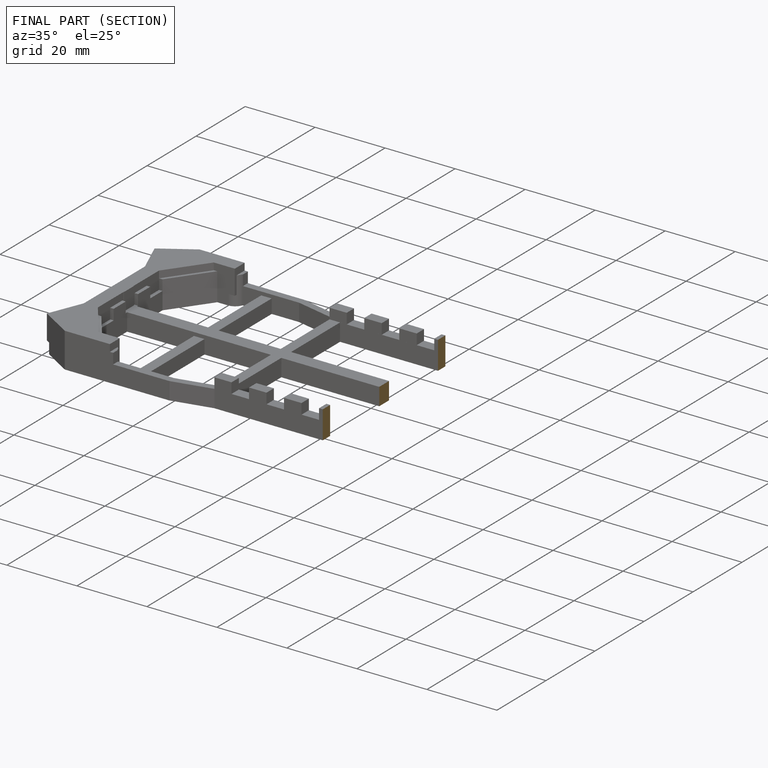
[diagram: finished part — half-section view (interior)]
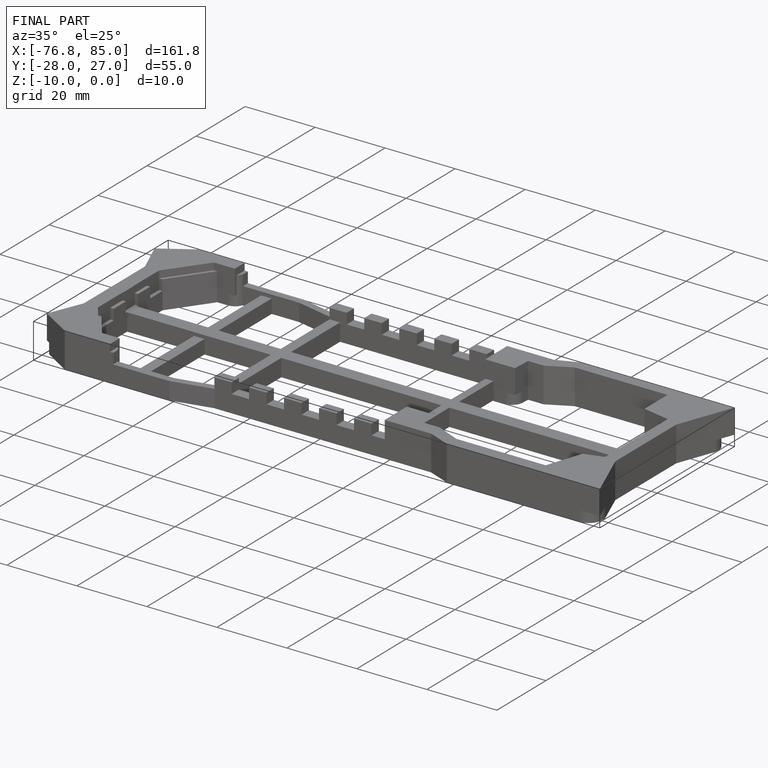
[diagram: finished part — iso view with bounding-box wireframe]
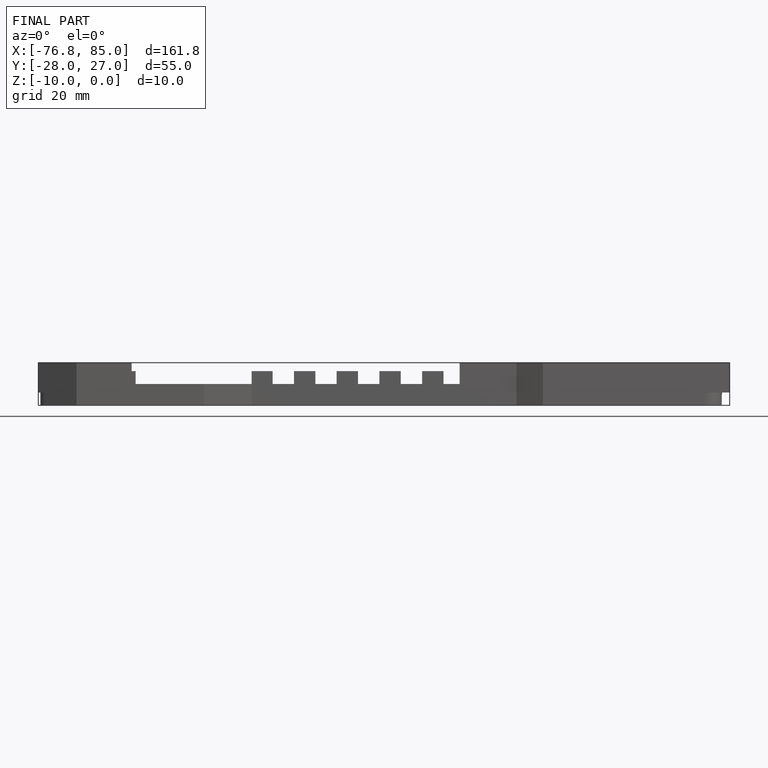
[diagram: finished part — front view with bounding-box wireframe]
